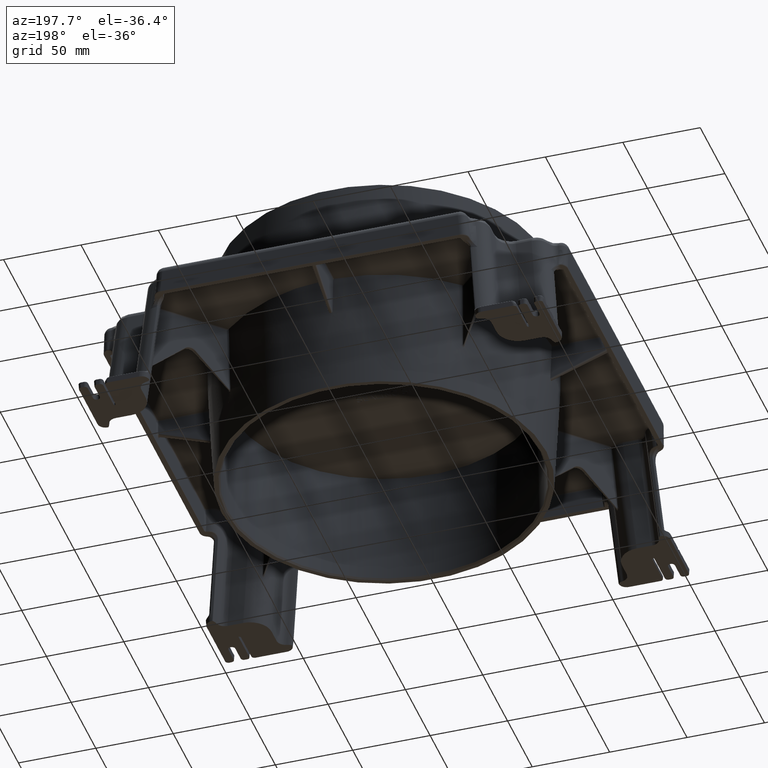
[diagram: clean part render]
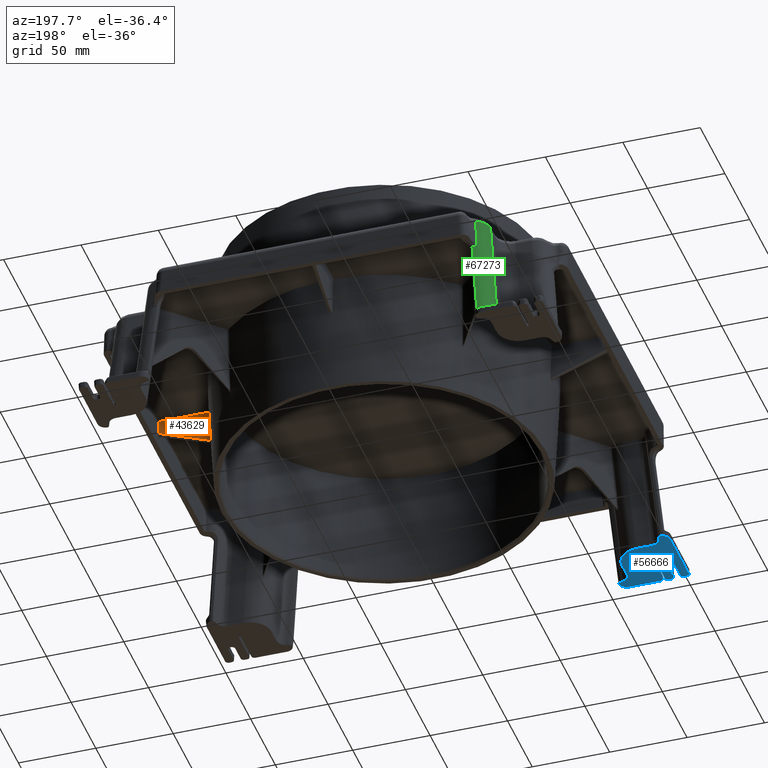
[diagram: same view with three faces highlighted in distinct colors, each labeled with its STEP entity id]
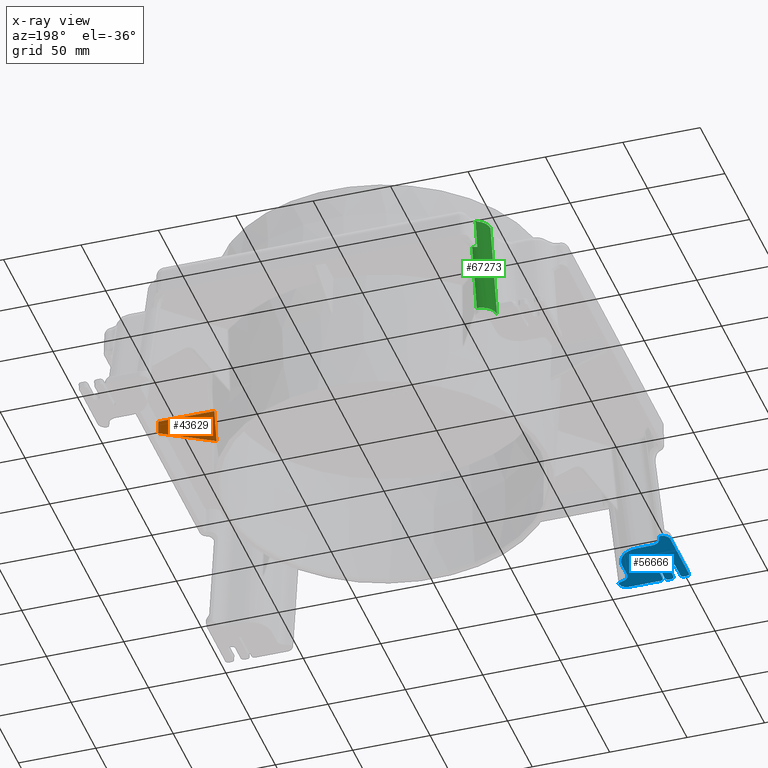
[diagram: x-ray of the same camera — body ghosted, the three highlighted faces saturated]
A machine part, auxiliary view with three faces highlighted in distinct colors.
The next image is the same camera in x-ray (body ghosted, the three faces saturated) — at least one of them is partly hidden behind the body in this view.
Their STEP definitions:

[orange] entity #43629 — the highlighted planar face has unit normal (-0, 0.9994, -0.0349).
#35773=CARTESIAN_POINT('',(109.01949717581046,1.966297947787979,-4.965100503297498));
#35774=VERTEX_POINT('',#35773);
#35788=CARTESIAN_POINT('',(107.84190984397752,1.174082495940329,-27.651182837046242));
#35789=VERTEX_POINT('',#35788);
#35790=CARTESIAN_POINT('',(109.01949717581047,1.966297947787978,-4.965100503297498));
#35791=CARTESIAN_POINT('',(108.4288914238702,1.568039301546253,-16.369735969186653));
#35792=CARTESIAN_POINT('',(107.84190984397725,1.174082495940155,-27.651182837051238));
#35800=(BOUNDED_CURVE()B_SPLINE_CURVE(2,(#35790,#35791,#35792),.UNSPECIFIED.,.F.,.U.)B_SPLINE_CURVE_WITH_KNOTS((3,3),(0.096144549701564,2.368974315532609),.UNSPECIFIED.)CURVE()GEOMETRIC_REPRESENTATION_ITEM()RATIONAL_B_SPLINE_CURVE((1.000000749228346,1.000009251524143,1.000001041650747))REPRESENTATION_ITEM(''));
#35801=EDGE_CURVE('',#35774,#35789,#35800,.T.);
#43377=CARTESIAN_POINT('',(145.16895999549666,1.662890988745869,-13.653539030226579));
#43378=VERTEX_POINT('',#43377);
#43424=CARTESIAN_POINT('',(107.84190984397752,1.174082495940328,-27.651182837046253));
#43425=DIRECTION('',(0.936258799579951,0.012260579146782,0.351097049842482));
#43426=VECTOR('',#43425,39.868303687255889);
#43427=LINE('',#43424,#43426);
#43428=EDGE_CURVE('',#35789,#43378,#43427,.T.);
#43445=CARTESIAN_POINT('',(145.01730273688429,1.966297947787979,-4.965100503297499));
#43446=VERTEX_POINT('',#43445);
#43463=CARTESIAN_POINT('',(145.16895999549669,1.662890988745869,-13.653539030226577));
#43464=DIRECTION('',(-0.017441778138094,0.034894187812614,0.999238800303651));
#43465=VECTOR('',#43464,8.695057201830851);
#43466=LINE('',#43463,#43465);
#43467=EDGE_CURVE('',#43378,#43446,#43466,.T.);
#43486=CARTESIAN_POINT('',(145.01730273688429,1.966297947787979,-4.965100503297498));
#43487=DIRECTION('',(-1.0,0.0,0.0));
#43488=VECTOR('',#43487,35.997805561073832);
#43489=LINE('',#43486,#43488);
#43490=EDGE_CURVE('',#43446,#35774,#43489,.T.);
#43618=CARTESIAN_POINT('',(124.45158042578325,1.670897582708295,-13.424260177585081));
#43619=DIRECTION('',(-6.780589E-018,0.999390827019096,-0.034899496702501));
#43620=DIRECTION('',(-1.183556E-019,0.034899496702501,0.999390827019096));
#43621=AXIS2_PLACEMENT_3D('',#43618,#43619,#43620);
#43622=PLANE('',#43621);
#43623=ORIENTED_EDGE('',*,*,#43490,.F.);
#43624=ORIENTED_EDGE('',*,*,#43467,.F.);
#43625=ORIENTED_EDGE('',*,*,#43428,.F.);
#43626=ORIENTED_EDGE('',*,*,#35801,.F.);
#43627=EDGE_LOOP('',(#43623,#43624,#43625,#43626));
#43628=FACE_OUTER_BOUND('',#43627,.T.);
#43629=ADVANCED_FACE('',(#43628),#43622,.T.);

[blue] entity #56666 — the highlighted planar face has unit normal (0, 0, 1).
#40231=CARTESIAN_POINT('',(-113.15879105895243,-127.10551683223683,-82.000000000000014));
#40232=VERTEX_POINT('',#40231);
#40239=CARTESIAN_POINT('',(-127.10551683223687,-113.15879105895237,-82.000000000000014));
#40240=VERTEX_POINT('',#40239);
#40241=CARTESIAN_POINT('',(-127.21226878455931,-127.21226878455926,-82.000000000000014));
#40242=DIRECTION('',(0.0,0.0,1.0));
#40243=DIRECTION('',(0.707106781186548,0.707106781186548,0.0));
#40244=AXIS2_PLACEMENT_3D('',#40241,#40242,#40243);
#40245=ELLIPSE('',#40244,14.106752722304895,14.000000000000002);
#40246=EDGE_CURVE('',#40232,#40240,#40245,.T.);
#48011=CARTESIAN_POINT('',(-110.4205023119938,-149.7903688828678,-82.000000000000014));
#48012=VERTEX_POINT('',#48011);
#48019=CARTESIAN_POINT('',(-105.42429713860729,-144.80634534752409,-82.000000000000014));
#48020=VERTEX_POINT('',#48019);
#48021=CARTESIAN_POINT('',(-110.44339632632402,-144.78350715287823,-82.000000000000014));
#48022=DIRECTION('',(0.0,0.0,1.0));
#48023=DIRECTION('',(0.857862219266309,-0.513879764882296,0.0));
#48024=AXIS2_PLACEMENT_3D('',#48021,#48022,#48023);
#48025=ELLIPSE('',#48024,5.025934842332649,5.000000000000001);
#48026=EDGE_CURVE('',#48012,#48020,#48025,.T.);
#48997=CARTESIAN_POINT('',(-149.7903688828678,-110.42050231199376,-82.000000000000014));
#48998=VERTEX_POINT('',#48997);
#49005=CARTESIAN_POINT('',(-149.7903688828678,-147.79310981335865,-82.000000000000014));
#49006=VERTEX_POINT('',#49005);
#49007=CARTESIAN_POINT('',(-149.7903688828678,-147.79310981335865,-82.000000000000014));
#49008=DIRECTION('',(0.0,1.0,0.0));
#49009=VECTOR('',#49008,37.372607501364911);
#49010=LINE('',#49007,#49009);
#49011=EDGE_CURVE('',#48998,#49006,#49010,.F.);
#49050=CARTESIAN_POINT('',(-144.80634534752409,-105.42429713860729,-82.000000000000014));
#49051=VERTEX_POINT('',#49050);
#49058=CARTESIAN_POINT('',(-144.78350715287823,-110.44339632632399,-82.000000000000014));
#49059=DIRECTION('',(0.0,0.0,1.0));
#49060=DIRECTION('',(-0.513879764882322,0.857862219266293,0.0));
#49061=AXIS2_PLACEMENT_3D('',#49058,#49059,#49060);
#49062=ELLIPSE('',#49061,5.025934842332648,4.999999999999999);
#49063=EDGE_CURVE('',#49051,#48998,#49062,.T.);
#53421=CARTESIAN_POINT('',(-136.21237580912802,-150.0,-82.000000000000014));
#53422=VERTEX_POINT('',#53421);
#53429=CARTESIAN_POINT('',(-134.20963111713215,-148.0,-82.000000000000014));
#53430=VERTEX_POINT('',#53429);
#53431=CARTESIAN_POINT('',(-136.21237580912799,-148.0,-82.000000000000014));
#53432=DIRECTION('',(0.0,0.0,1.0));
#53433=DIRECTION('',(1.0,0.0,0.0));
#53434=AXIS2_PLACEMENT_3D('',#53431,#53432,#53433);
#53435=ELLIPSE('',#53434,2.002744691995842,2.0);
#53436=EDGE_CURVE('',#53422,#53430,#53435,.T.);
#53453=CARTESIAN_POINT('',(-137.78762419087198,-150.0,-82.000000000000014));
#53454=VERTEX_POINT('',#53453);
#53461=CARTESIAN_POINT('',(-137.78762419087195,-150.0,-82.000000000000014));
#53462=DIRECTION('',(1.0,0.0,0.0));
#53463=VECTOR('',#53462,1.575248381743961);
#53464=LINE('',#53461,#53463);
#53465=EDGE_CURVE('',#53454,#53422,#53464,.T.);
#53477=CARTESIAN_POINT('',(-139.79036888286782,-148.0,-82.000000000000014));
#53478=VERTEX_POINT('',#53477);
#53485=CARTESIAN_POINT('',(-137.78762419087198,-148.0,-82.000000000000014));
#53486=DIRECTION('',(0.0,0.0,1.0));
#53487=DIRECTION('',(-1.0,0.0,0.0));
#53488=AXIS2_PLACEMENT_3D('',#53485,#53486,#53487);
#53489=ELLIPSE('',#53488,2.002744691995842,2.0);
#53490=EDGE_CURVE('',#53478,#53454,#53489,.T.);
#53502=CARTESIAN_POINT('',(-139.79036888286782,-136.99999999999994,-82.000000000000014));
#53503=VERTEX_POINT('',#53502);
#53510=CARTESIAN_POINT('',(-139.79036888286782,-136.99999999999994,-82.000000000000014));
#53511=DIRECTION('',(0.0,-1.0,0.0));
#53512=VECTOR('',#53511,11.000000000000057);
#53513=LINE('',#53510,#53512);
#53514=EDGE_CURVE('',#53478,#53503,#53513,.F.);
#53526=CARTESIAN_POINT('',(-144.20963111713218,-136.99999999999994,-82.000000000000014));
#53527=VERTEX_POINT('',#53526);
#53534=CARTESIAN_POINT('',(-142.0,-136.99999999999994,-82.000000000000014));
#53535=DIRECTION('',(0.0,0.0,1.0));
#53536=DIRECTION('',(0.707106781186548,0.707106781186548,0.0));
#53537=AXIS2_PLACEMENT_3D('',#53534,#53535,#53536);
#53538=CIRCLE('',#53537,2.209631117132165);
#53539=EDGE_CURVE('',#53527,#53503,#53538,.F.);
#53551=CARTESIAN_POINT('',(-144.20963111713218,-147.79310981335868,-82.000000000000014));
#53552=VERTEX_POINT('',#53551);
#53559=CARTESIAN_POINT('',(-144.20963111713218,-147.79310981335868,-82.000000000000014));
#53560=DIRECTION('',(0.0,1.0,0.0));
#53561=VECTOR('',#53560,10.79310981335874);
#53562=LINE('',#53559,#53561);
#53563=EDGE_CURVE('',#53527,#53552,#53562,.F.);
#53575=CARTESIAN_POINT('',(-146.20689018664132,-149.7903688828678,-82.000000000000014));
#53576=VERTEX_POINT('',#53575);
#53583=CARTESIAN_POINT('',(-146.21237580912802,-147.78762419087198,-82.000000000000014));
#53584=DIRECTION('',(0.0,0.0,1.0));
#53585=DIRECTION('',(0.707106781186548,-0.707106781186548,0.0));
#53586=AXIS2_PLACEMENT_3D('',#53583,#53584,#53585);
#53587=ELLIPSE('',#53586,2.005485627631133,2.0);
#53588=EDGE_CURVE('',#53576,#53552,#53587,.T.);
#53600=CARTESIAN_POINT('',(-147.79310981335868,-149.7903688828678,-82.000000000000014));
#53601=VERTEX_POINT('',#53600);
#53608=CARTESIAN_POINT('',(-146.20689018664132,-149.7903688828678,-82.000000000000014));
#53609=DIRECTION('',(-1.0,0.0,0.0));
#53610=VECTOR('',#53609,1.586219626717366);
#53611=LINE('',#53608,#53610);
#53612=EDGE_CURVE('',#53601,#53576,#53611,.F.);
#53625=CARTESIAN_POINT('',(-147.78762419087198,-147.78762419087198,-82.000000000000014));
#53626=DIRECTION('',(0.0,0.0,1.0));
#53627=DIRECTION('',(-0.707106781186541,-0.707106781186554,0.0));
#53628=AXIS2_PLACEMENT_3D('',#53625,#53626,#53627);
#53629=ELLIPSE('',#53628,2.005485627631133,2.0);
#53630=EDGE_CURVE('',#49006,#53601,#53629,.T.);
#55962=CARTESIAN_POINT('',(-144.57965326680849,-105.42429713860729,-82.000000000000014));
#55963=VERTEX_POINT('',#55962);
#55970=CARTESIAN_POINT('',(-144.57965326680849,-105.42429713860729,-82.000000000000014));
#55971=DIRECTION('',(-1.0,0.0,0.0));
#55972=VECTOR('',#55971,0.226692080715594);
#55973=LINE('',#55970,#55972);
#55974=EDGE_CURVE('',#49051,#55963,#55973,.F.);
#56493=CARTESIAN_POINT('',(-105.42429713860729,-144.57965326680846,-82.000000000000014));
#56494=VERTEX_POINT('',#56493);
#56495=CARTESIAN_POINT('',(-105.42429713860729,-144.80634534752409,-82.000000000000014));
#56496=DIRECTION('',(0.0,1.0,0.0));
#56497=VECTOR('',#56496,0.226692080715623);
#56498=LINE('',#56495,#56497);
#56499=EDGE_CURVE('',#56494,#48020,#56498,.F.);
#56528=CARTESIAN_POINT('',(0.0,0.0,-82.000000000000014));
#56529=DIRECTION('',(0.0,0.0,1.0));
#56530=DIRECTION('',(1.0,0.0,0.0));
#56531=AXIS2_PLACEMENT_3D('',#56528,#56529,#56530);
#56532=PLANE('',#56531);
#56533=ORIENTED_EDGE('',*,*,#49063,.F.);
#56534=ORIENTED_EDGE('',*,*,#55974,.T.);
#56535=CARTESIAN_POINT('',(-144.15621224298894,-105.65959125625433,-82.000000000000014));
#56536=VERTEX_POINT('',#56535);
#56537=CARTESIAN_POINT('',(-144.58346583653429,-105.92620705737895,-82.000000000000014));
#56538=DIRECTION('',(0.0,0.0,1.0));
#56539=DIRECTION('',(0.70710678118654,0.707106781186555,0.0));
#56540=AXIS2_PLACEMENT_3D('',#56537,#56538,#56539);
#56541=ELLIPSE('',#56540,0.503812597225175,0.5);
#56542=EDGE_CURVE('',#56536,#55963,#56541,.T.);
#56543=ORIENTED_EDGE('',*,*,#56542,.F.);
#56544=CARTESIAN_POINT('',(-143.0202339909375,-108.46499349081434,-82.000000000000014));
#56545=VERTEX_POINT('',#56544);
#56546=CARTESIAN_POINT('',(-151.84677692680521,-110.45867567649739,-82.000000000000014));
#56547=DIRECTION('',(0.0,0.0,1.0));
#56548=DIRECTION('',(-0.707106781186536,-0.707106781186559,0.0));
#56549=AXIS2_PLACEMENT_3D('',#56546,#56547,#56548);
#56550=ELLIPSE('',#56549,9.068626750053134,8.999999999999989);
#56551=EDGE_CURVE('',#56545,#56536,#56550,.T.);
#56552=ORIENTED_EDGE('',*,*,#56551,.F.);
#56553=CARTESIAN_POINT('',(-137.18162287040198,-113.15879105895237,-82.000000000000014));
#56554=VERTEX_POINT('',#56553);
#56555=CARTESIAN_POINT('',(-137.13587203369235,-107.13587203369229,-82.000000000000014));
#56556=DIRECTION('',(0.0,0.0,-1.0));
#56557=DIRECTION('',(-0.707106781186545,-0.70710678118655,0.0));
#56558=AXIS2_PLACEMENT_3D('',#56555,#56556,#56557);
#56559=ELLIPSE('',#56558,6.045751166702098,6.000000000000002);
#56560=EDGE_CURVE('',#56554,#56545,#56559,.T.);
#56561=ORIENTED_EDGE('',*,*,#56560,.F.);
#56562=CARTESIAN_POINT('',(-137.18162287040195,-113.15879105895237,-82.000000000000014));
#56563=DIRECTION('',(1.0,0.0,0.0));
#56564=VECTOR('',#56563,10.076106038165065);
#56565=LINE('',#56562,#56564);
#56566=EDGE_CURVE('',#56554,#40240,#56565,.T.);
#56567=ORIENTED_EDGE('',*,*,#56566,.T.);
#56568=ORIENTED_EDGE('',*,*,#40246,.F.);
#56569=CARTESIAN_POINT('',(-113.15879105895242,-137.18162287040192,-82.000000000000014));
#56570=VERTEX_POINT('',#56569);
#56571=CARTESIAN_POINT('',(-113.15879105895243,-127.10551683223683,-82.000000000000014));
#56572=DIRECTION('',(0.0,-1.0,0.0));
#56573=VECTOR('',#56572,10.076106038165094);
#56574=LINE('',#56571,#56573);
#56575=EDGE_CURVE('',#40232,#56570,#56574,.T.);
#56576=ORIENTED_EDGE('',*,*,#56575,.T.);
#56577=CARTESIAN_POINT('',(-108.46499349081438,-143.02023399093747,-82.000000000000014));
#56578=VERTEX_POINT('',#56577);
#56579=CARTESIAN_POINT('',(-107.13587203369235,-137.13587203369232,-82.000000000000014));
#56580=DIRECTION('',(0.0,0.0,-1.0));
#56581=DIRECTION('',(-0.707106781186547,-0.707106781186547,0.0));
#56582=AXIS2_PLACEMENT_3D('',#56579,#56580,#56581);
#56583=ELLIPSE('',#56582,6.045751166702098,6.000000000000001);
#56584=EDGE_CURVE('',#56578,#56570,#56583,.T.);
#56585=ORIENTED_EDGE('',*,*,#56584,.F.);
#56586=CARTESIAN_POINT('',(-105.65959125625434,-144.15621224298891,-82.000000000000014));
#56587=VERTEX_POINT('',#56586);
#56588=CARTESIAN_POINT('',(-110.45867567649745,-151.84677692680518,-82.000000000000014));
#56589=DIRECTION('',(0.0,0.0,1.0));
#56590=DIRECTION('',(-0.707106781186559,-0.707106781186536,0.0));
#56591=AXIS2_PLACEMENT_3D('',#56588,#56589,#56590);
#56592=ELLIPSE('',#56591,9.068626750053152,9.000000000000007);
#56593=EDGE_CURVE('',#56587,#56578,#56592,.T.);
#56594=ORIENTED_EDGE('',*,*,#56593,.F.);
#56595=CARTESIAN_POINT('',(-105.92620705737895,-144.58346583653426,-82.000000000000014));
#56596=DIRECTION('',(0.0,0.0,1.0));
#56597=DIRECTION('',(0.70710678118655,0.707106781186545,0.0));
#56598=AXIS2_PLACEMENT_3D('',#56595,#56596,#56597);
#56599=ELLIPSE('',#56598,0.503812597225175,0.5);
#56600=EDGE_CURVE('',#56494,#56587,#56599,.T.);
#56601=ORIENTED_EDGE('',*,*,#56600,.F.);
#56602=ORIENTED_EDGE('',*,*,#56499,.T.);
#56603=ORIENTED_EDGE('',*,*,#48026,.F.);
#56604=CARTESIAN_POINT('',(-130.89792537192477,-149.7903688828678,-82.000000000000014));
#56605=VERTEX_POINT('',#56604);
#56606=CARTESIAN_POINT('',(-110.4205023119938,-149.7903688828678,-82.000000000000014));
#56607=DIRECTION('',(-1.0,0.0,0.0));
#56608=VECTOR('',#56607,20.47742305993097);
#56609=LINE('',#56606,#56608);
#56610=EDGE_CURVE('',#56605,#48012,#56609,.F.);
#56611=ORIENTED_EDGE('',*,*,#56610,.F.);
#56612=CARTESIAN_POINT('',(-132.89518444143391,-147.79310981335868,-82.000000000000014));
#56613=VERTEX_POINT('',#56612);
#56614=CARTESIAN_POINT('',(-130.89243974943807,-147.78762419087198,-82.000000000000014));
#56615=DIRECTION('',(0.0,0.0,1.0));
#56616=DIRECTION('',(-0.707106781186554,-0.707106781186541,0.0));
#56617=AXIS2_PLACEMENT_3D('',#56614,#56615,#56616);
#56618=ELLIPSE('',#56617,2.005485627631133,2.0);
#56619=EDGE_CURVE('',#56613,#56605,#56618,.T.);
#56620=ORIENTED_EDGE('',*,*,#56619,.F.);
#56621=CARTESIAN_POINT('',(-132.89518444143391,-126.99999999999997,-82.000000000000014));
#56622=VERTEX_POINT('',#56621);
#56623=CARTESIAN_POINT('',(-132.89518444143391,-126.99999999999997,-82.000000000000014));
#56624=DIRECTION('',(0.0,-1.0,0.0));
#56625=VECTOR('',#56624,20.793109813358711);
#56626=LINE('',#56623,#56625);
#56627=EDGE_CURVE('',#56613,#56622,#56626,.F.);
#56628=ORIENTED_EDGE('',*,*,#56627,.T.);
#56629=CARTESIAN_POINT('',(-134.20963114545043,-126.02741903685941,-82.000000001475996));
#56630=VERTEX_POINT('',#56629);
#56631=CARTESIAN_POINT('',(-134.20963114792983,-126.02741902887928,-82.0));
#56632=CARTESIAN_POINT('',(-134.16489846588431,-126.01352047515067,-82.0));
#56633=CARTESIAN_POINT('',(-134.119156533374,-126.00272002940712,-82.000000000000014));
#56634=CARTESIAN_POINT('',(-133.94019180884095,-125.97349598130538,-82.000000000000014));
#56635=CARTESIAN_POINT('',(-133.80469281304852,-125.9785055915704,-82.000000000000028));
#56636=CARTESIAN_POINT('',(-133.54372620231271,-126.04110648404392,-82.000000000000028));
#56637=CARTESIAN_POINT('',(-133.42086097163198,-126.09798775396465,-81.999999999995495));
#56638=CARTESIAN_POINT('',(-133.20397722502065,-126.25646762280745,-81.999999999995495));
#56639=CARTESIAN_POINT('',(-133.1122032799357,-126.35663797263842,-81.99999999999163));
#56640=CARTESIAN_POINT('',(-132.99560122743654,-126.54929480328484,-81.99999999999163));
#56641=CARTESIAN_POINT('',(-132.95921818009742,-126.63277983782315,-82.000000000001791));
#56642=CARTESIAN_POINT('',(-132.90836293246619,-126.81103688645283,-82.000000000001791));
#56643=CARTESIAN_POINT('',(-132.89518444143394,-126.90529211652975,-82.000000000000014));
#56644=CARTESIAN_POINT('',(-132.89518444143394,-126.99999999999997,-82.000000000000014));
#56645=B_SPLINE_CURVE_WITH_KNOTS('',3,(#56631,#56632,#56633,#56634,#56635,#56636,#56637,#56638,#56639,#56640,#56641,#56642,#56643,#56644),.UNSPECIFIED.,.F.,.U.,(4,2,2,2,2,2,4),(0.103049447888198,0.117166505152945,0.157458316195154,0.19768864611071,0.238049848026317,0.265248828536813,0.293661434561755),.UNSPECIFIED.);
#56646=EDGE_CURVE('',#56630,#56622,#56645,.T.);
#56647=ORIENTED_EDGE('',*,*,#56646,.F.);
#56648=CARTESIAN_POINT('',(-134.20963111713218,-148.0,-82.000000000000014));
#56649=DIRECTION('',(0.0,1.0,0.0));
#56650=VECTOR('',#56649,21.9725809806896);
#56651=LINE('',#56648,#56650);
#56652=EDGE_CURVE('',#56630,#53430,#56651,.F.);
#56653=ORIENTED_EDGE('',*,*,#56652,.T.);
#56654=ORIENTED_EDGE('',*,*,#53436,.F.);
#56655=ORIENTED_EDGE('',*,*,#53465,.F.);
#56656=ORIENTED_EDGE('',*,*,#53490,.F.);
#56657=ORIENTED_EDGE('',*,*,#53514,.T.);
#56658=ORIENTED_EDGE('',*,*,#53539,.F.);
#56659=ORIENTED_EDGE('',*,*,#53563,.T.);
#56660=ORIENTED_EDGE('',*,*,#53588,.F.);
#56661=ORIENTED_EDGE('',*,*,#53612,.F.);
#56662=ORIENTED_EDGE('',*,*,#53630,.F.);
#56663=ORIENTED_EDGE('',*,*,#49011,.F.);
#56664=EDGE_LOOP('',(#56533,#56534,#56543,#56552,#56561,#56567,#56568,#56576,#56585,#56594,#56601,#56602,#56603,#56611,#56620,#56628,#56647,#56653,#56654,#56655,#56656,#56657,#56658,#56659,#56660,#56661,#56662,#56663));
#56665=FACE_OUTER_BOUND('',#56664,.T.);
#56666=ADVANCED_FACE('',(#56665),#56532,.F.);

[green] entity #67273 — the highlighted cylindrical surface (edge-blend (fillet) strip) has radius 10 mm, axis along (-0.0868, 0.0868, -0.9924).
#55256=CARTESIAN_POINT('',(-106.70244172595596,146.66438870687341,-76.174311485495309));
#55257=VERTEX_POINT('',#55256);
#55325=CARTESIAN_POINT('',(-116.66438870687341,136.70244172595596,-76.174311485495323));
#55326=VERTEX_POINT('',#55325);
#55334=CARTESIAN_POINT('',(-106.61094005253673,136.61094005253676,-76.0));
#55335=DIRECTION('',(0.017177023213526,-0.017177023213525,-0.999704906333386));
#55336=DIRECTION('',(-0.7068981184538,0.7068981184538,-0.024291979189765));
#55337=AXIS2_PLACEMENT_3D('',#55334,#55335,#55336);
#55338=ELLIPSE('',#55337,10.109620600137236,10.000000000000004);
#55339=EDGE_CURVE('',#55326,#55257,#55338,.T.);
#55633=CARTESIAN_POINT('',(-102.26339530448865,142.22534228540613,-25.435778713738294));
#55634=VERTEX_POINT('',#55633);
#55635=CARTESIAN_POINT('',(-102.26339530448864,142.2253422854061,-25.435778713738294));
#55636=DIRECTION('',(-0.086826593864248,0.086826593864248,-0.992432509138967));
#55637=VECTOR('',#55636,51.125423950267098);
#55638=LINE('',#55635,#55637);
#55639=EDGE_CURVE('',#55634,#55257,#55638,.T.);
#62758=CARTESIAN_POINT('',(-105.44901271222054,141.71848308965562,-25.550328810850708));
#62759=VERTEX_POINT('',#62758);
#65720=CARTESIAN_POINT('',(-102.14901821271461,132.14901821271462,-25.0));
#65721=DIRECTION('',(-0.042684405262755,0.042684405262755,0.998176378750133));
#65722=DIRECTION('',(-0.70581728623445,0.705817286234452,-0.060364864824418));
#65723=AXIS2_PLACEMENT_3D('',#65720,#65721,#65722);
#65724=ELLIPSE('',#65723,10.170762990577384,10.000000000000007);
#65725=EDGE_CURVE('',#55634,#62759,#65724,.T.);
#66455=CARTESIAN_POINT('',(-103.72233221090654,139.83120045163744,-4.446277516377555));
#66456=VERTEX_POINT('',#66455);
#66502=CARTESIAN_POINT('',(-110.39931762037158,130.43737063945417,-4.564221286261711));
#66503=VERTEX_POINT('',#66502);
#66513=CARTESIAN_POINT('',(-100.39924494219612,130.39924494219616,-5.000000000000002));
#66514=DIRECTION('',(0.043330460392955,-0.043330460392955,0.998120705327902));
#66515=DIRECTION('',(-0.705777919180059,0.705777919180059,0.061278524751588));
#66516=AXIS2_PLACEMENT_3D('',#66513,#66514,#66515);
#66517=ELLIPSE('',#66516,10.01911739188027,9.999999999999993);
#66518=EDGE_CURVE('',#66456,#66503,#66517,.T.);
#67228=CARTESIAN_POINT('',(-116.66438870687341,136.70244172595599,-76.174311485495323));
#67229=DIRECTION('',(0.086826593864248,-0.086826593864248,0.992432509138967));
#67230=VECTOR('',#67229,72.156131061609841);
#67231=LINE('',#67228,#67230);
#67232=EDGE_CURVE('',#55326,#66503,#67231,.T.);
#67237=CARTESIAN_POINT('',(-100.00007185578761,130.00007185578764,-0.437430744495967));
#67238=DIRECTION('',(-0.086826593864248,0.086826593864248,-0.992432509138967));
#67239=DIRECTION('',(-0.701755757082144,0.701755757082144,0.122791346617479));
#67240=AXIS2_PLACEMENT_3D('',#67237,#67238,#67239);
#67241=CYLINDRICAL_SURFACE('',#67240,10.0);
#67242=ORIENTED_EDGE('',*,*,#55339,.F.);
#67243=ORIENTED_EDGE('',*,*,#67232,.T.);
#67244=ORIENTED_EDGE('',*,*,#66518,.F.);
#67245=CARTESIAN_POINT('',(-104.05006914154725,140.15893738227814,-8.192327775147412));
#67246=VERTEX_POINT('',#67245);
#67247=CARTESIAN_POINT('',(-104.05006914154727,140.15893738227814,-8.192327775147412));
#67248=DIRECTION('',(0.08682659386425,-0.086826593864242,0.992432509138967));
#67249=VECTOR('',#67248,3.774614620413758);
#67250=LINE('',#67247,#67249);
#67251=EDGE_CURVE('',#67246,#66456,#67250,.T.);
#67252=ORIENTED_EDGE('',*,*,#67251,.F.);
#67253=CARTESIAN_POINT('',(-105.02917898250784,141.21062143086058,-20.000000000002188));
#67254=VERTEX_POINT('',#67253);
#67255=CARTESIAN_POINT('',(-105.02926183501565,141.2106426178552,-19.999983881468406));
#67256=CARTESIAN_POINT('',(-104.72179683172047,140.85354226478182,-16.06275558025985));
#67257=CARTESIAN_POINT('',(-104.39426280514081,140.50313104587173,-12.12647935230094));
#67258=CARTESIAN_POINT('',(-104.05006914154724,140.15893738227814,-8.19232777514741));
#67259=B_SPLINE_CURVE_WITH_KNOTS('',3,(#67255,#67256,#67257,#67258),.UNSPECIFIED.,.F.,.U.,(4,4),(-2.610072137149398,-1.420827062771455),.UNSPECIFIED.);
#67260=EDGE_CURVE('',#67254,#67246,#67259,.T.);
#67261=ORIENTED_EDGE('',*,*,#67260,.F.);
#67262=CARTESIAN_POINT('',(-105.02926245724979,141.21064334053924,-19.999991849457981));
#67263=CARTESIAN_POINT('',(-105.173727684464,141.37843020713865,-21.849934526862185));
#67264=CARTESIAN_POINT('',(-105.31376232096429,141.54769381793733,-23.700087391022912));
#67265=CARTESIAN_POINT('',(-105.44901271221902,141.71848308965616,-25.550328810850758));
#67266=B_SPLINE_CURVE_WITH_KNOTS('',3,(#67262,#67263,#67264,#67265),.UNSPECIFIED.,.F.,.U.,(4,4),(2.6100729393967,3.16885059920155),.UNSPECIFIED.);
#67267=EDGE_CURVE('',#67254,#62759,#67266,.T.);
#67268=ORIENTED_EDGE('',*,*,#67267,.T.);
#67269=ORIENTED_EDGE('',*,*,#65725,.F.);
#67270=ORIENTED_EDGE('',*,*,#55639,.T.);
#67271=EDGE_LOOP('',(#67242,#67243,#67244,#67252,#67261,#67268,#67269,#67270));
#67272=FACE_OUTER_BOUND('',#67271,.T.);
#67273=ADVANCED_FACE('',(#67272),#67241,.T.);